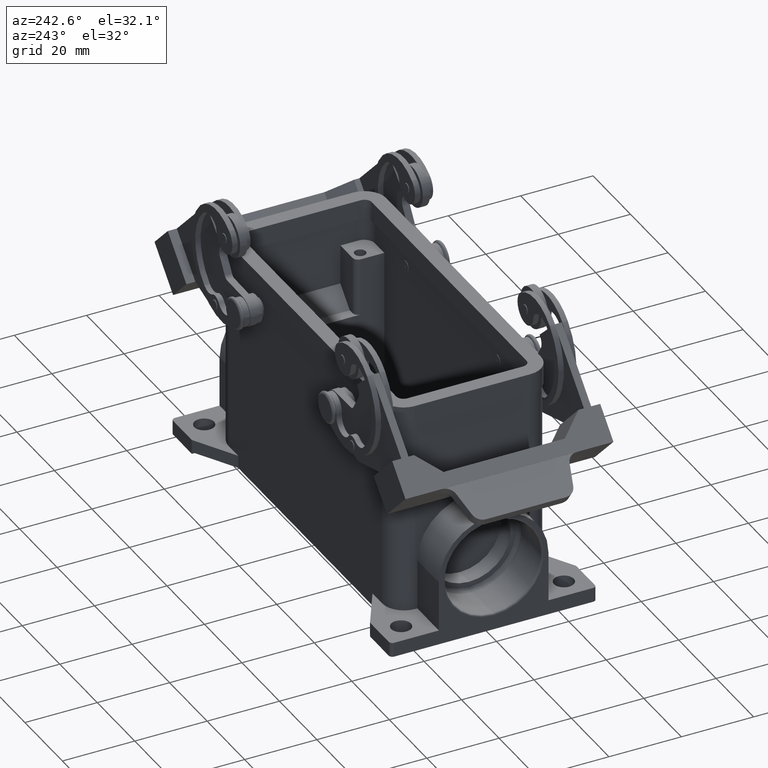
[diagram: clean part render]
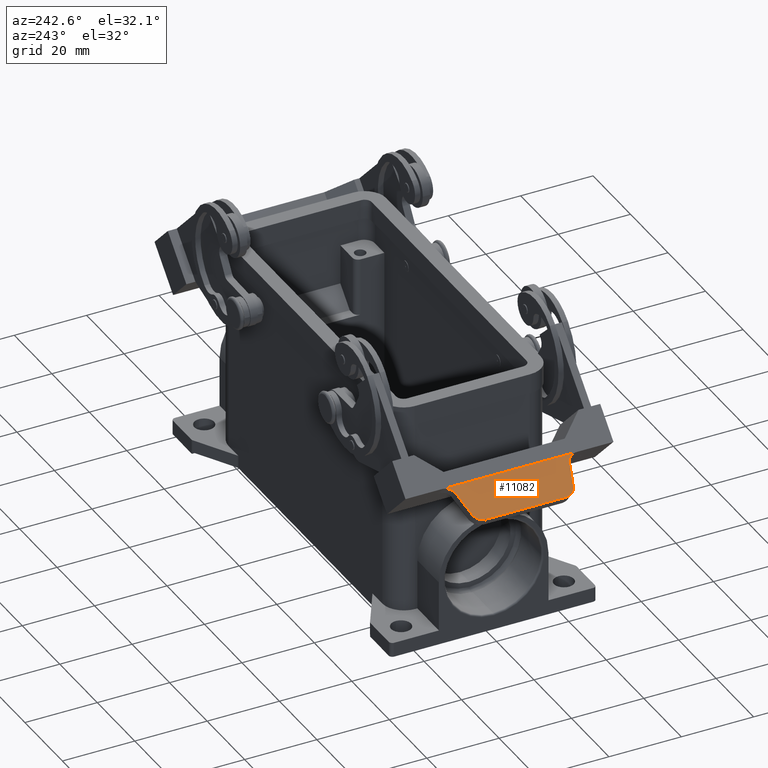
[diagram: same view with one face highlighted and labeled with its STEP entity id]
A machine part, auxiliary view. The second image highlights one B-rep face of the part: STEP entity #11082.
In plain terms, the highlighted face is a freeform B-spline surface patch.
Its self-contained STEP definition (entity closure, byte-faithful):
#6166=CARTESIAN_POINT('',(-75.227251764699417,12.956534071072026,11.006613890723287));
#6167=VERTEX_POINT('',#6166);
#6176=CARTESIAN_POINT('',(-73.889708282677134,14.027359853116820,11.908798360994393));
#6177=VERTEX_POINT('',#6176);
#6178=CARTESIAN_POINT('',(-73.257822949064618,11.122007636042337,12.335010400183856));
#6179=DIRECTION('',(0.559192903470747,0.0,-0.829037572555041));
#6180=DIRECTION('',(0.0,1.0,0.0));
#6181=AXIS2_PLACEMENT_3D('',#6178,#6179,#6180);
#6182=ELLIPSE('',#6181,3.003918414024676,3.000000000000000);
#6183=EDGE_CURVE('',#6167,#6177,#6182,.T.);
#6210=CARTESIAN_POINT('',(-75.227251764699417,-12.956534071072026,11.006613890723287));
#6211=VERTEX_POINT('',#6210);
#6227=CARTESIAN_POINT('',(-73.889708282677134,-14.027359853116820,11.908798360994393));
#6228=VERTEX_POINT('',#6227);
#6235=CARTESIAN_POINT('',(-73.257822949064618,-11.122007636042337,12.335010400183856));
#6236=DIRECTION('',(0.559192903470747,0.0,-0.829037572555041));
#6237=DIRECTION('',(0.0,-1.0,0.0));
#6238=AXIS2_PLACEMENT_3D('',#6235,#6236,#6237);
#6239=ELLIPSE('',#6238,3.003918414024676,3.000000000000000);
#6240=EDGE_CURVE('',#6228,#6211,#6239,.T.);
#6252=CARTESIAN_POINT('',(-67.407697420282432,-16.725696676910729,16.280969893944739));
#6253=VERTEX_POINT('',#6252);
#6309=CARTESIAN_POINT('',(-66.885399746780067,-18.456805317424159,16.633264123049077));
#6310=VERTEX_POINT('',#6309);
#6317=CARTESIAN_POINT('',(-69.417787621034947,-18.551980963936895,14.925146933915666));
#6318=DIRECTION('',(-0.559192903470747,1.972152E-031,0.829037572555042));
#6319=DIRECTION('',(0.829037572555041,1.453100E-015,0.559192903470747));
#6320=AXIS2_PLACEMENT_3D('',#6317,#6318,#6319);
#6321=ELLIPSE('',#6320,3.056150084865643,3.000000000000002);
#6322=EDGE_CURVE('',#6253,#6310,#6321,.F.);
#6384=CARTESIAN_POINT('',(-67.407697420282432,16.725696676910722,16.280969893944739));
#6385=VERTEX_POINT('',#6384);
#6412=CARTESIAN_POINT('',(-68.762027318648478,15.654203485069685,15.367462842882508));
#6413=VERTEX_POINT('',#6412);
#6420=CARTESIAN_POINT('',(-69.417787621034947,18.551980963936888,14.925146933915666));
#6421=DIRECTION('',(-0.559192903470747,4.930381E-032,0.829037572555042));
#6422=DIRECTION('',(0.829037572555041,5.449126E-016,0.559192903470747));
#6423=AXIS2_PLACEMENT_3D('',#6420,#6421,#6422);
#6424=ELLIPSE('',#6423,3.056150084865643,3.000000000000002);
#6425=EDGE_CURVE('',#6413,#6385,#6424,.T.);
#10649=CARTESIAN_POINT('',(-66.885399746780067,18.456805317424241,16.633264123049077));
#10650=VERTEX_POINT('',#10649);
#10651=CARTESIAN_POINT('',(-69.417787621034947,18.551980963936888,14.925146933915666));
#10652=DIRECTION('',(-0.559192903470747,4.930381E-032,0.829037572555042));
#10653=DIRECTION('',(0.829037572555041,5.449126E-016,0.559192903470747));
#10654=AXIS2_PLACEMENT_3D('',#10651,#10652,#10653);
#10655=ELLIPSE('',#10654,3.056150084865643,3.000000000000002);
#10656=EDGE_CURVE('',#6385,#10650,#10655,.T.);
#10709=CARTESIAN_POINT('',(-68.762027318648478,15.654203485069685,15.367462842882508));
#10710=DIRECTION('',(-0.801767105395475,-0.254374193494504,-0.540798741113348));
#10711=VECTOR('',#10710,6.395474358478957);
#10712=LINE('',#10709,#10711);
#10713=EDGE_CURVE('',#6413,#6177,#10712,.T.);
#10891=CARTESIAN_POINT('',(-68.762027318648478,-15.654203485069685,15.367462842882510));
#10892=VERTEX_POINT('',#10891);
#10893=CARTESIAN_POINT('',(-69.417787621034947,-18.551980963936895,14.925146933915666));
#10894=DIRECTION('',(-0.559192903470747,1.972152E-031,0.829037572555042));
#10895=DIRECTION('',(0.829037572555041,1.453100E-015,0.559192903470747));
#10896=AXIS2_PLACEMENT_3D('',#10893,#10894,#10895);
#10897=ELLIPSE('',#10896,3.056150084865643,3.000000000000002);
#10898=EDGE_CURVE('',#10892,#6253,#10897,.F.);
#10972=CARTESIAN_POINT('',(-75.744935666729731,-11.122007636042337,10.657431689771613));
#10973=VERTEX_POINT('',#10972);
#10974=CARTESIAN_POINT('',(-73.257822949064618,-11.122007636042337,12.335010400183856));
#10975=DIRECTION('',(0.559192903470747,0.0,-0.829037572555041));
#10976=DIRECTION('',(0.0,-1.0,0.0));
#10977=AXIS2_PLACEMENT_3D('',#10974,#10975,#10976);
#10978=ELLIPSE('',#10977,3.003918414024676,3.000000000000000);
#10979=EDGE_CURVE('',#6211,#10973,#10978,.T.);
#10998=CARTESIAN_POINT('',(-75.744935666729731,11.122007636042337,10.657431689771613));
#10999=VERTEX_POINT('',#10998);
#11000=CARTESIAN_POINT('',(-75.744935666729731,-11.122007636042337,10.657431689771613));
#11001=DIRECTION('',(0.0,1.0,0.0));
#11002=VECTOR('',#11001,22.244015272084674);
#11003=LINE('',#11000,#11002);
#11004=EDGE_CURVE('',#10973,#10999,#11003,.T.);
#11015=CARTESIAN_POINT('',(-66.884460441164109,18.456805317424241,16.633897692686951));
#11016=CARTESIAN_POINT('',(-75.744935666729745,18.456805317424241,10.657431689771604));
#11017=CARTESIAN_POINT('',(-66.884460441164109,-18.456805317424156,16.633897692686951));
#11018=CARTESIAN_POINT('',(-75.744935666729745,-18.456805317424156,10.657431689771606));
#11019=B_SPLINE_SURFACE_WITH_KNOTS('',1,1,((#11015,#11017),(#11016,#11018)),.UNSPECIFIED.,.F.,.F.,.U.,(2,2),(2,2),(0.0,10.687664249351462),(0.0,36.913610634848396),.UNSPECIFIED.);
#11020=ORIENTED_EDGE('',*,*,#6240,.F.);
#11021=CARTESIAN_POINT('',(-73.889708282677134,-14.027359853116820,11.908798360994393));
#11022=DIRECTION('',(0.801767105395475,-0.254374193494504,0.540798741113348));
#11023=VECTOR('',#11022,6.395474358478958);
#11024=LINE('',#11021,#11023);
#11025=EDGE_CURVE('',#6228,#10892,#11024,.T.);
#11026=ORIENTED_EDGE('',*,*,#11025,.T.);
#11027=ORIENTED_EDGE('',*,*,#10898,.T.);
#11028=ORIENTED_EDGE('',*,*,#6322,.T.);
#11029=CARTESIAN_POINT('',(-66.885399746780067,-14.750000000000000,16.633264123049077));
#11030=VERTEX_POINT('',#11029);
#11031=CARTESIAN_POINT('',(-66.885399746780067,-18.456805317424159,16.633264123049077));
#11032=DIRECTION('',(0.0,1.0,0.0));
#11033=VECTOR('',#11032,3.706805317424159);
#11034=LINE('',#11031,#11033);
#11035=EDGE_CURVE('',#6310,#11030,#11034,.T.);
#11036=ORIENTED_EDGE('',*,*,#11035,.T.);
#11037=CARTESIAN_POINT('',(-66.884460441164123,-14.750000000000000,16.633897692686954));
#11038=VERTEX_POINT('',#11037);
#11039=CARTESIAN_POINT('',(-66.884460441164123,-14.750000000000000,16.633897692686954));
#11040=DIRECTION('',(-0.829037572553042,0.0,-0.559192903473711));
#11041=VECTOR('',#11040,0.001133007293085);
#11042=LINE('',#11039,#11041);
#11043=EDGE_CURVE('',#11038,#11030,#11042,.T.);
#11044=ORIENTED_EDGE('',*,*,#11043,.F.);
#11045=CARTESIAN_POINT('',(-66.884460441164123,14.750000000000000,16.633897692686954));
#11046=VERTEX_POINT('',#11045);
#11047=CARTESIAN_POINT('',(-66.884460441164123,14.750000000000000,16.633897692686954));
#11048=DIRECTION('',(0.0,-1.0,0.0));
#11049=VECTOR('',#11048,29.500000000000000);
#11050=LINE('',#11047,#11049);
#11051=EDGE_CURVE('',#11046,#11038,#11050,.T.);
#11052=ORIENTED_EDGE('',*,*,#11051,.F.);
#11053=CARTESIAN_POINT('',(-66.885399746780067,14.750000000000000,16.633264123049077));
#11054=VERTEX_POINT('',#11053);
#11055=CARTESIAN_POINT('',(-66.885399746780067,14.750000000000000,16.633264123049077));
#11056=DIRECTION('',(0.829037572553042,0.0,0.559192903473711));
#11057=VECTOR('',#11056,0.001133007293085);
#11058=LINE('',#11055,#11057);
#11059=EDGE_CURVE('',#11054,#11046,#11058,.T.);
#11060=ORIENTED_EDGE('',*,*,#11059,.F.);
#11061=CARTESIAN_POINT('',(-66.885399746780067,18.456805317424241,16.633264123049077));
#11062=DIRECTION('',(0.0,-1.0,0.0));
#11063=VECTOR('',#11062,3.706805317424241);
#11064=LINE('',#11061,#11063);
#11065=EDGE_CURVE('',#10650,#11054,#11064,.T.);
#11066=ORIENTED_EDGE('',*,*,#11065,.F.);
#11067=ORIENTED_EDGE('',*,*,#10656,.F.);
#11068=ORIENTED_EDGE('',*,*,#6425,.F.);
#11069=ORIENTED_EDGE('',*,*,#10713,.T.);
#11070=ORIENTED_EDGE('',*,*,#6183,.F.);
#11071=CARTESIAN_POINT('',(-73.257822949064618,11.122007636042337,12.335010400183856));
#11072=DIRECTION('',(0.559192903470747,0.0,-0.829037572555041));
#11073=DIRECTION('',(0.0,1.0,0.0));
#11074=AXIS2_PLACEMENT_3D('',#11071,#11072,#11073);
#11075=ELLIPSE('',#11074,3.003918414024676,3.000000000000000);
#11076=EDGE_CURVE('',#10999,#6167,#11075,.T.);
#11077=ORIENTED_EDGE('',*,*,#11076,.F.);
#11078=ORIENTED_EDGE('',*,*,#11004,.F.);
#11079=ORIENTED_EDGE('',*,*,#10979,.F.);
#11080=EDGE_LOOP('',(#11020,#11026,#11027,#11028,#11036,#11044,#11052,#11060,#11066,#11067,#11068,#11069,#11070,#11077,#11078,#11079));
#11081=FACE_OUTER_BOUND('',#11080,.T.);
#11082=ADVANCED_FACE('',(#11081),#11019,.T.);